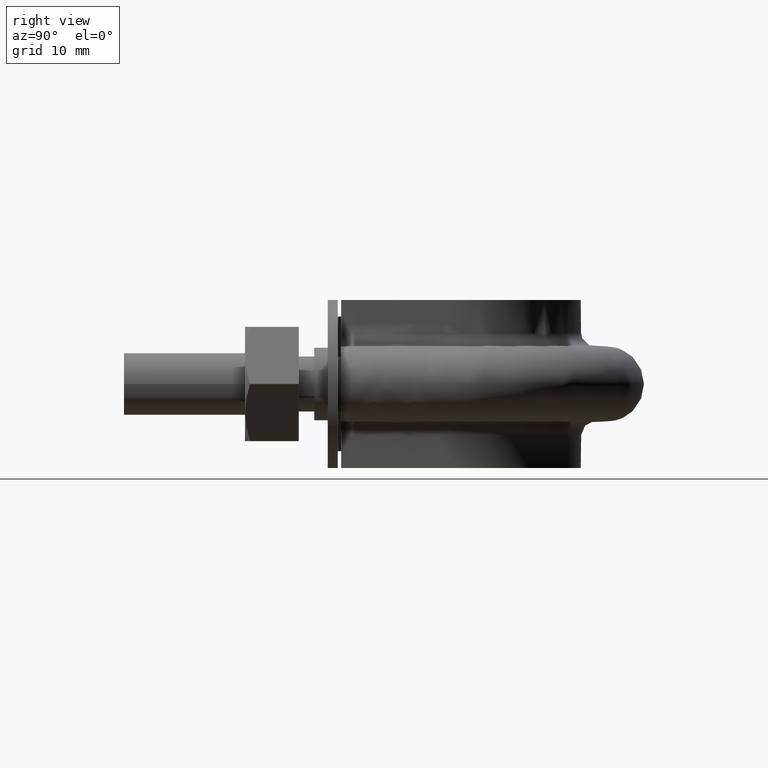
[diagram: clean part render]
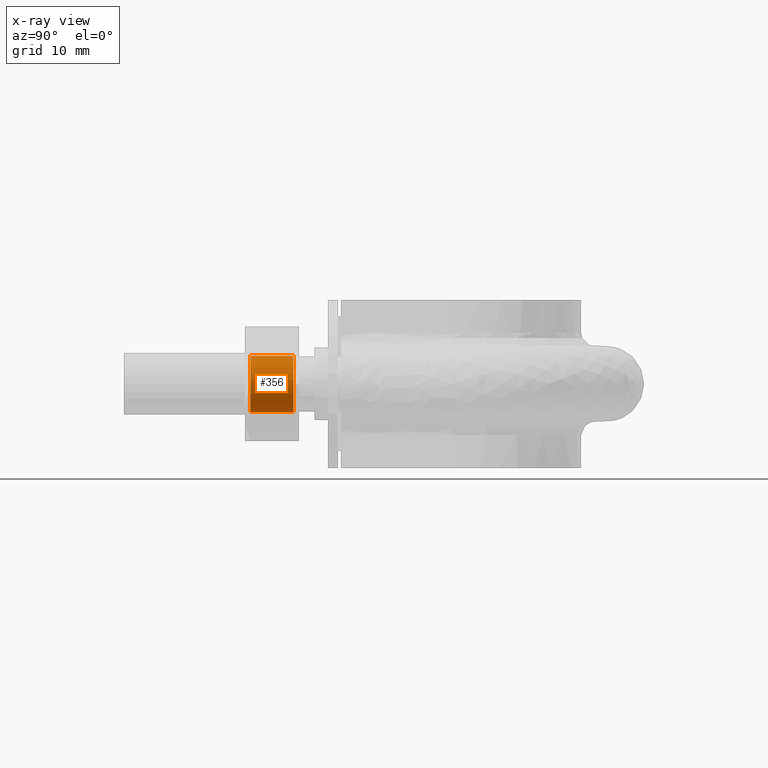
[diagram: x-ray — body ghosted, one internal face saturated and labeled with its STEP entity id]
A machine part, right view, then the same camera in x-ray: the body is ghosted and one INTERNAL B-rep face — a face not visible from any outside direction — is saturated and labeled: STEP entity #356.
In plain terms, the highlighted cylindrical surface (bore or boss wall) has radius 4.188 mm, axis along (0, 1, 0).
Its self-contained STEP definition (entity closure, byte-faithful):
#356 = ADVANCED_FACE( '', ( #583, #584 ), #585, .F. );
#583 = FACE_OUTER_BOUND( '', #1661, .T. );
#584 = FACE_OUTER_BOUND( '', #1662, .T. );
#585 = CYLINDRICAL_SURFACE( '', #1663, 4.18800000000000 );
#1661 = EDGE_LOOP( '', ( #2351 ) );
#1662 = EDGE_LOOP( '', ( #2352 ) );
#1663 = AXIS2_PLACEMENT_3D( '', #2353, #2354, #2355 );
#2351 = ORIENTED_EDGE( '', *, *, #2703, .F. );
#2352 = ORIENTED_EDGE( '', *, *, #2704, .T. );
#2353 = CARTESIAN_POINT( '', ( 23.0000000000000, 26.0000000000000, 7.29613851974116E-015 ) );
#2354 = DIRECTION( '', ( 2.44921270764475E-016, 1.00000000000000, 3.06151588455595E-016 ) );
#2355 = DIRECTION( '', ( -8.35309044156739E-011, 3.06151588476053E-016, -1.00000000000000 ) );
#2703 = EDGE_CURVE( '', #3061, #3061, #3062, .F. );
#2704 = EDGE_CURVE( '', #3063, #3063, #3064, .T. );
#3061 = VERTEX_POINT( '', #3797 );
#3062 = CIRCLE( '', #3798, 4.18800000000000 );
#3063 = VERTEX_POINT( '', #3799 );
#3064 = CIRCLE( '', #3800, 4.18800000000000 );
#3797 = CARTESIAN_POINT( '', ( 23.0000000000000, 18.8120000000003, -4.18799999999999 ) );
#3798 = AXIS2_PLACEMENT_3D( '', #4205, #4206, #4207 );
#3799 = CARTESIAN_POINT( '', ( 23.0000000000000, 25.1880000000000, 4.18800000000001 ) );
#3800 = AXIS2_PLACEMENT_3D( '', #4208, #4209, #4210 );
#4205 = CARTESIAN_POINT( '', ( 23.0000000000000, 18.8120000000003, 5.09552090192243E-015 ) );
#4206 = DIRECTION( '', ( -2.44921270764475E-016, -1.00000000000000, -3.06151588455595E-016 ) );
#4207 = DIRECTION( '', ( 0.000000000000000, 3.06151588455595E-016, -1.00000000000000 ) );
#4208 = CARTESIAN_POINT( '', ( 23.0000000000000, 25.1880000000000, 7.04754342991522E-015 ) );
#4209 = DIRECTION( '', ( 2.44921270764475E-016, 1.00000000000000, 3.06151588455595E-016 ) );
#4210 = DIRECTION( '', ( 0.000000000000000, -3.06151588455594E-016, 1.00000000000000 ) );